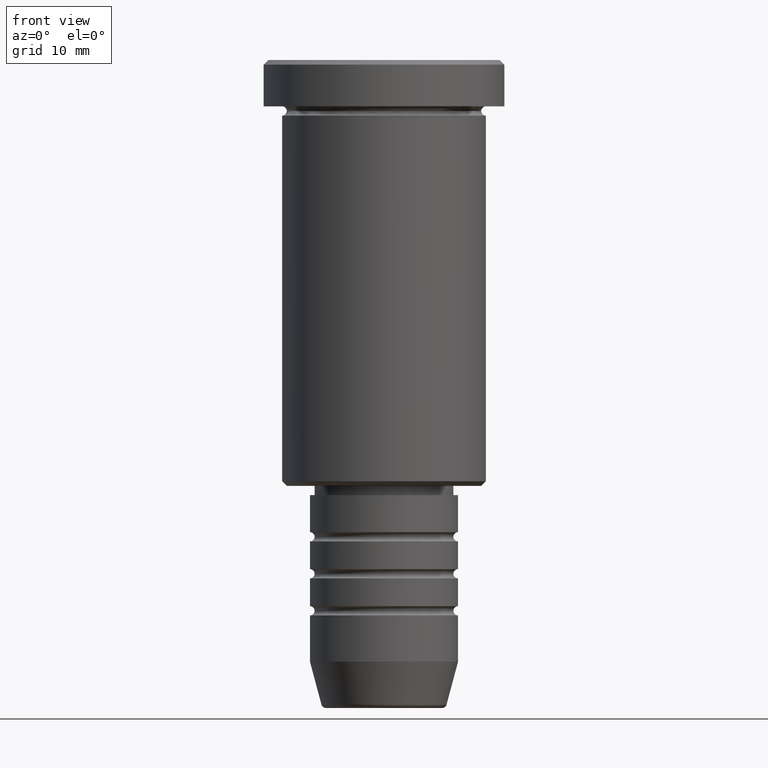
[diagram: clean part render]
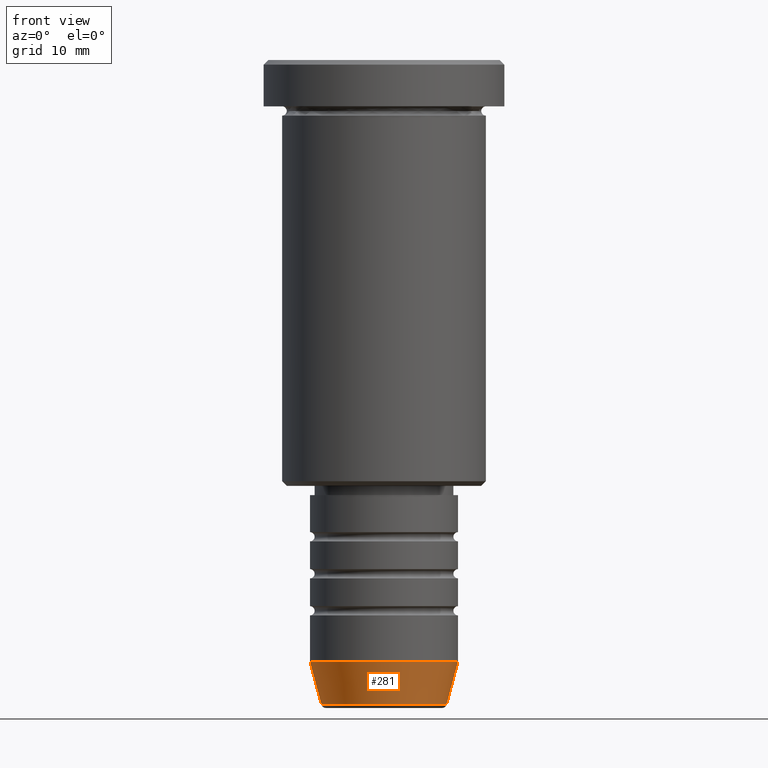
[diagram: same view with one face highlighted and labeled with its STEP entity id]
A machine part, front view. The second image highlights one B-rep face of the part: STEP entity #281.
In plain terms, the highlighted conical surface has half-angle 15 deg.
Its self-contained STEP definition (entity closure, byte-faithful):
#1 = CARTESIAN_POINT ( 'NONE',  ( 6.759553456999436882, 0.000000000000000000, -69.62940952255127058 ) ) ;
#14 = ORIENTED_EDGE ( 'NONE', *, *, #745, .F. ) ;
#35 = ORIENTED_EDGE ( 'NONE', *, *, #173, .T. ) ;
#43 = VECTOR ( 'NONE', #651, 1000.000000000000114 ) ;
#87 = CARTESIAN_POINT ( 'NONE',  ( 0.000000000000000000, 0.000000000000000000, -69.62940952255127058 ) ) ;
#91 = LINE ( 'NONE', #1097, #43 ) ;
#93 = EDGE_LOOP ( 'NONE', ( #365, #35, #1089, #14 ) ) ;
#130 = VERTEX_POINT ( 'NONE', #726 ) ;
#167 = VERTEX_POINT ( 'NONE', #1 ) ;
#173 = EDGE_CURVE ( 'NONE', #940, #167, #273, .T. ) ;
#218 = DIRECTION ( 'NONE',  ( 1.000000000000000000, 0.000000000000000000, 0.000000000000000000 ) ) ;
#273 = CIRCLE ( 'NONE', #733, 6.759553456999436882 ) ;
#281 = ADVANCED_FACE ( 'NONE', ( #358 ), #366, .T. ) ;
#307 = CARTESIAN_POINT ( 'NONE',  ( -6.759553456999437770, 9.037619948979306213E-16, -69.62940952255127058 ) ) ;
#341 = CARTESIAN_POINT ( 'NONE',  ( 0.000000000000000000, 0.000000000000000000, -65.00000000000000000 ) ) ;
#358 = FACE_OUTER_BOUND ( 'NONE', #93, .T. ) ;
#365 = ORIENTED_EDGE ( 'NONE', *, *, #797, .F. ) ;
#366 = CONICAL_SURFACE ( 'NONE', #934, 8.000000000000000000, 0.2617993877991502405 ) ;
#498 = DIRECTION ( 'NONE',  ( -0.000000000000000000, -0.000000000000000000, 1.000000000000000000 ) ) ;
#500 = CIRCLE ( 'NONE', #1100, 8.000000000000000000 ) ;
#582 = VERTEX_POINT ( 'NONE', #584 ) ;
#584 = CARTESIAN_POINT ( 'NONE',  ( 8.000000000000000000, 0.000000000000000000, -65.00000000000000000 ) ) ;
#605 = DIRECTION ( 'NONE',  ( 1.000000000000000000, 0.000000000000000000, 0.000000000000000000 ) ) ;
#651 = DIRECTION ( 'NONE',  ( -0.2588190451025214611, 3.169619151431774186E-17, 0.9659258262890679791 ) ) ;
#726 = CARTESIAN_POINT ( 'NONE',  ( -8.000000000000000000, 9.797174393178825657E-16, -65.00000000000000000 ) ) ;
#731 = DIRECTION ( 'NONE',  ( 1.000000000000000000, 0.000000000000000000, 0.000000000000000000 ) ) ;
#733 = AXIS2_PLACEMENT_3D ( 'NONE', #87, #1102, #218 ) ;
#745 = EDGE_CURVE ( 'NONE', #130, #582, #500, .T. ) ;
#746 = EDGE_CURVE ( 'NONE', #167, #582, #1056, .T. ) ;
#797 = EDGE_CURVE ( 'NONE', #940, #130, #91, .T. ) ;
#873 = CARTESIAN_POINT ( 'NONE',  ( 8.000000000000000000, 0.000000000000000000, -65.00000000000000000 ) ) ;
#881 = DIRECTION ( 'NONE',  ( 0.2588190451025214611, 0.000000000000000000, 0.9659258262890679791 ) ) ;
#934 = AXIS2_PLACEMENT_3D ( 'NONE', #341, #1181, #731 ) ;
#940 = VERTEX_POINT ( 'NONE', #307 ) ;
#1056 = LINE ( 'NONE', #873, #1172 ) ;
#1089 = ORIENTED_EDGE ( 'NONE', *, *, #746, .T. ) ;
#1097 = CARTESIAN_POINT ( 'NONE',  ( -8.000000000000000000, 9.797174393178825657E-16, -65.00000000000000000 ) ) ;
#1100 = AXIS2_PLACEMENT_3D ( 'NONE', #1141, #498, #605 ) ;
#1102 = DIRECTION ( 'NONE',  ( -0.000000000000000000, -0.000000000000000000, 1.000000000000000000 ) ) ;
#1141 = CARTESIAN_POINT ( 'NONE',  ( 0.000000000000000000, 0.000000000000000000, -65.00000000000000000 ) ) ;
#1172 = VECTOR ( 'NONE', #881, 1000.000000000000114 ) ;
#1181 = DIRECTION ( 'NONE',  ( -0.000000000000000000, -0.000000000000000000, 1.000000000000000000 ) ) ;